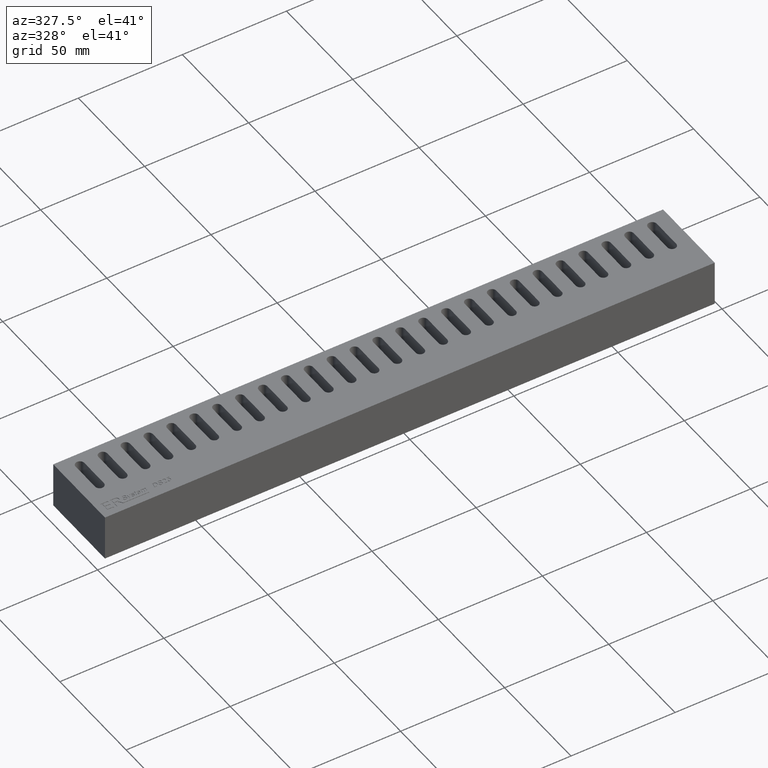
[diagram: clean part render]
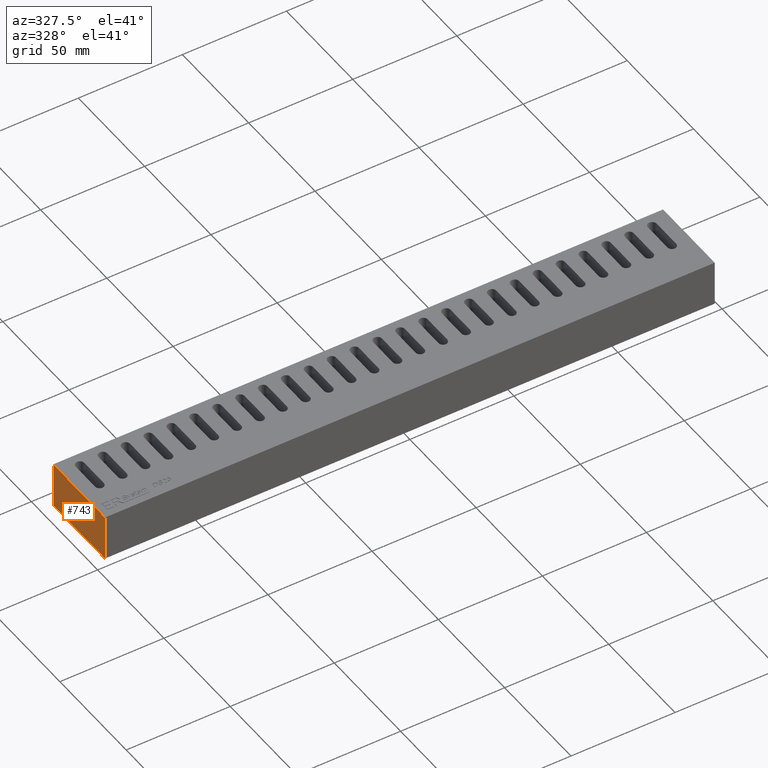
[diagram: same view with one face highlighted and labeled with its STEP entity id]
A machine part, auxiliary view. The second image highlights one B-rep face of the part: STEP entity #743.
In plain terms, the highlighted planar face has unit normal (1, -0, 0).
Its self-contained STEP definition (entity closure, byte-faithful):
#743 = ADVANCED_FACE( '', ( #1522 ), #1523, .F. );
#1522 = FACE_OUTER_BOUND( '', #2321, .T. );
#1523 = PLANE( '', #2322 );
#2321 = EDGE_LOOP( '', ( #5096, #5097, #5098, #5099 ) );
#2322 = AXIS2_PLACEMENT_3D( '', #5100, #5101, #5102 );
#5096 = ORIENTED_EDGE( '', *, *, #5164, .T. );
#5097 = ORIENTED_EDGE( '', *, *, #5749, .F. );
#5098 = ORIENTED_EDGE( '', *, *, #5364, .F. );
#5099 = ORIENTED_EDGE( '', *, *, #5675, .T. );
#5100 = CARTESIAN_POINT( '', ( -146.500000000000, 39.0000000000000, 22.0000000000000 ) );
#5101 = DIRECTION( '', ( 1.00000000000000, -7.11681426041767E-016, 0.000000000000000 ) );
#5102 = DIRECTION( '', ( 7.11681426041767E-016, 1.00000000000000, 0.000000000000000 ) );
#5164 = EDGE_CURVE( '', #6039, #6040, #6041, .T. );
#5364 = EDGE_CURVE( '', #6414, #6415, #6416, .T. );
#5675 = EDGE_CURVE( '', #6414, #6039, #6869, .T. );
#5749 = EDGE_CURVE( '', #6415, #6040, #6960, .T. );
#6039 = VERTEX_POINT( '', #7394 );
#6040 = VERTEX_POINT( '', #7395 );
#6041 = LINE( '', #7396, #7397 );
#6414 = VERTEX_POINT( '', #8325 );
#6415 = VERTEX_POINT( '', #8326 );
#6416 = LINE( '', #8327, #8328 );
#6869 = LINE( '', #9521, #9522 );
#6960 = LINE( '', #9716, #9717 );
#7394 = CARTESIAN_POINT( '', ( -146.500000000000, 39.0000000000000, 0.000000000000000 ) );
#7395 = CARTESIAN_POINT( '', ( -146.500000000000, -1.20211781203687E-014, 0.000000000000000 ) );
#7396 = CARTESIAN_POINT( '', ( -146.500000000000, 39.0000000000000, 0.000000000000000 ) );
#7397 = VECTOR( '', #10222, 1000.00000000000 );
#8325 = CARTESIAN_POINT( '', ( -146.500000000000, 39.0000000000000, 22.0000000000000 ) );
#8326 = CARTESIAN_POINT( '', ( -146.500000000000, -1.20211781203687E-014, 22.0000000000000 ) );
#8327 = CARTESIAN_POINT( '', ( -146.500000000000, 39.0000000000000, 22.0000000000000 ) );
#8328 = VECTOR( '', #10499, 1000.00000000000 );
#9521 = CARTESIAN_POINT( '', ( -146.500000000000, 39.0000000000000, 22.0000000000000 ) );
#9522 = VECTOR( '', #10769, 1000.00000000000 );
#9716 = CARTESIAN_POINT( '', ( -146.500000000000, -1.20211781203687E-014, 22.0000000000000 ) );
#9717 = VECTOR( '', #10820, 1000.00000000000 );
#10222 = DIRECTION( '', ( -7.11681426041767E-016, -1.00000000000000, 0.000000000000000 ) );
#10499 = DIRECTION( '', ( -7.11681426041767E-016, -1.00000000000000, 0.000000000000000 ) );
#10769 = DIRECTION( '', ( 0.000000000000000, 0.000000000000000, -1.00000000000000 ) );
#10820 = DIRECTION( '', ( 0.000000000000000, 0.000000000000000, -1.00000000000000 ) );